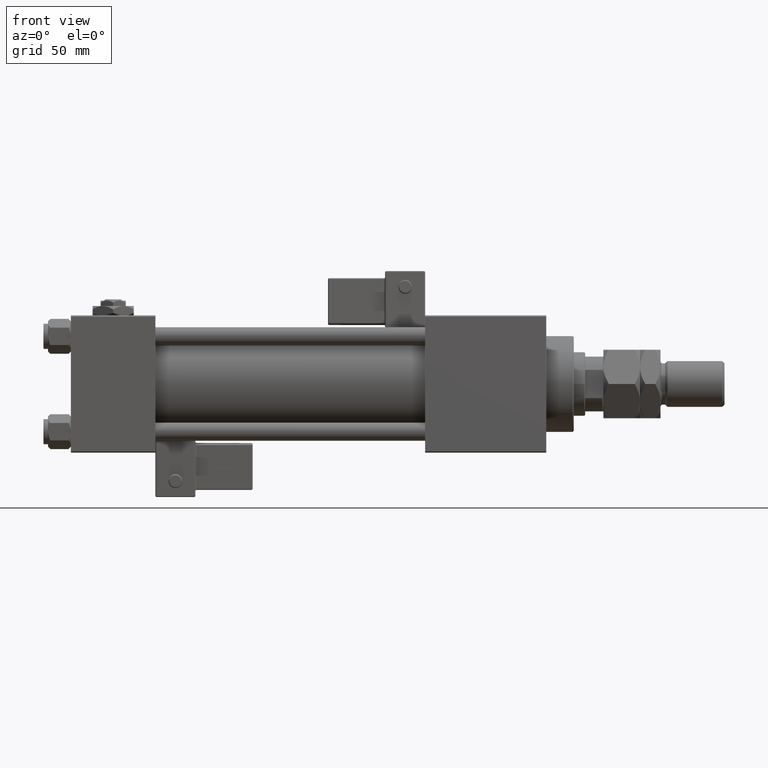
[diagram: clean part render]
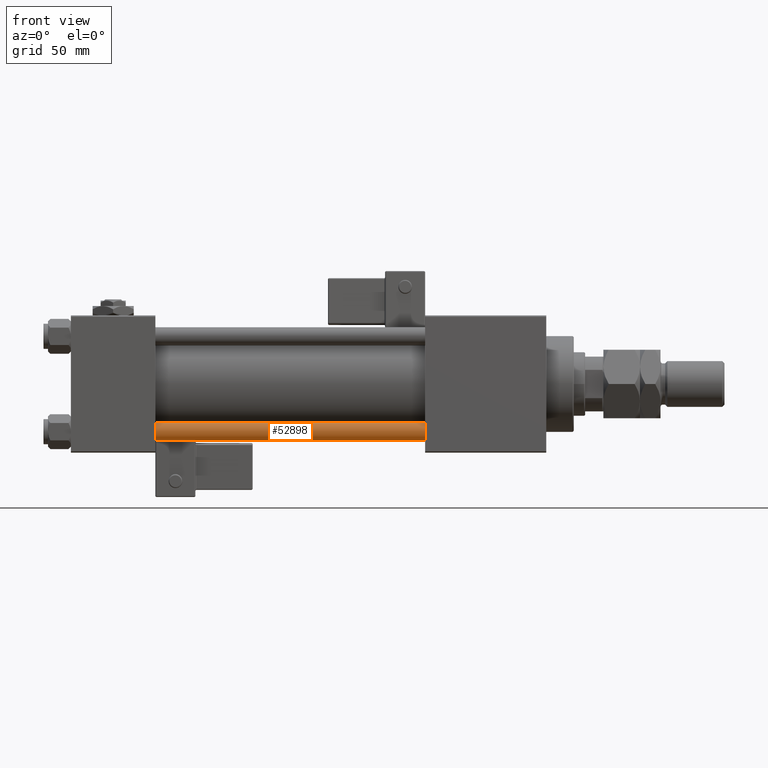
[diagram: same view with one face highlighted and labeled with its STEP entity id]
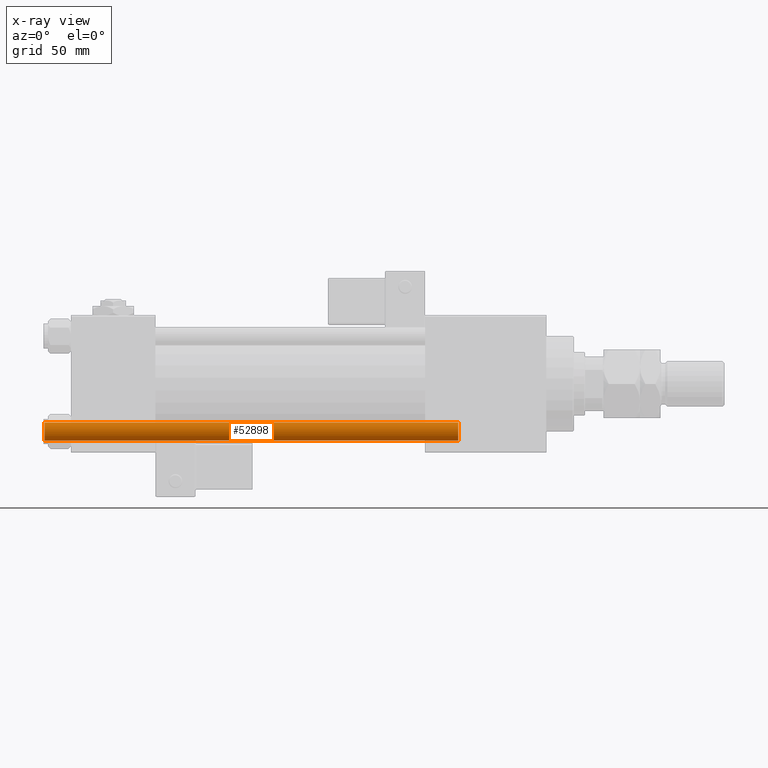
[diagram: x-ray of the same camera — body ghosted, the highlighted face saturated]
A machine part, front view. The second image highlights one B-rep face of the part: STEP entity #52898.
The next image is the same camera in x-ray: the body ghosted, the highlighted face saturated — about 0% of this face is hidden behind the body in this view.
In plain terms, the highlighted cylindrical surface (edge-blend (fillet) strip) has radius 4 mm, axis along (1, 0, -0).
Its self-contained STEP definition (entity closure, byte-faithful):
#2011 = VECTOR ( 'NONE', #28327, 1000.000000000000000 ) ;
#2036 = CIRCLE ( 'NONE', #22861, 4.000000000000000000 ) ;
#2525 = EDGE_CURVE ( 'NONE', #55029, #46060, #15858, .T. ) ;
#2544 = CARTESIAN_POINT ( 'NONE',  ( 0.000000000000000000, 0.000000000000000000, 181.5000000000000284 ) ) ;
#5445 = DIRECTION ( 'NONE',  ( -0.000000000000000000, -0.000000000000000000, -1.000000000000000000 ) ) ;
#5733 = VERTEX_POINT ( 'NONE', #50932 ) ;
#5843 = CARTESIAN_POINT ( 'NONE',  ( -4.000000000000000000, 0.000000000000000000, 181.5000000000000284 ) ) ;
#9203 = AXIS2_PLACEMENT_3D ( 'NONE', #9756, #13450, #52811 ) ;
#9756 = CARTESIAN_POINT ( 'NONE',  ( 0.000000000000000000, 0.000000000000000000, 182.0000000000000000 ) ) ;
#10316 = EDGE_CURVE ( 'NONE', #55029, #5733, #15739, .T. ) ;
#11052 = CARTESIAN_POINT ( 'NONE',  ( -4.000000000000000000, 0.000000000000000000, 182.0000000000000000 ) ) ;
#12546 = EDGE_LOOP ( 'NONE', ( #34924, #13687, #17719, #23029 ) ) ;
#13450 = DIRECTION ( 'NONE',  ( -0.000000000000000000, -0.000000000000000000, -1.000000000000000000 ) ) ;
#13687 = ORIENTED_EDGE ( 'NONE', *, *, #29690, .T. ) ;
#15476 = CARTESIAN_POINT ( 'NONE',  ( 4.000000000000000000, 4.898587196589412829E-16, 0.4999999999999726885 ) ) ;
#15739 = CIRCLE ( 'NONE', #23906, 4.000000000000000000 ) ;
#15858 = LINE ( 'NONE', #11052, #2011 ) ;
#17263 = DIRECTION ( 'NONE',  ( -0.000000000000000000, -0.000000000000000000, 1.000000000000000000 ) ) ;
#17719 = ORIENTED_EDGE ( 'NONE', *, *, #54694, .T. ) ;
#18971 = DIRECTION ( 'NONE',  ( 1.000000000000000000, 0.000000000000000000, 0.000000000000000000 ) ) ;
#19806 = DIRECTION ( 'NONE',  ( 0.000000000000000000, 0.000000000000000000, -1.000000000000000000 ) ) ;
#22861 = AXIS2_PLACEMENT_3D ( 'NONE', #39085, #17263, #26597 ) ;
#23029 = ORIENTED_EDGE ( 'NONE', *, *, #2525, .F. ) ;
#23906 = AXIS2_PLACEMENT_3D ( 'NONE', #2544, #19806, #18971 ) ;
#26597 = DIRECTION ( 'NONE',  ( 1.000000000000000000, 0.000000000000000000, 0.000000000000000000 ) ) ;
#27023 = CYLINDRICAL_SURFACE ( 'NONE', #9203, 4.000000000000000000 ) ;
#28327 = DIRECTION ( 'NONE',  ( -0.000000000000000000, -0.000000000000000000, -1.000000000000000000 ) ) ;
#29690 = EDGE_CURVE ( 'NONE', #5733, #40719, #44255, .T. ) ;
#30465 = FACE_OUTER_BOUND ( 'NONE', #12546, .T. ) ;
#34285 = CARTESIAN_POINT ( 'NONE',  ( -4.000000000000000000, 0.000000000000000000, 0.4999999999999726885 ) ) ;
#34924 = ORIENTED_EDGE ( 'NONE', *, *, #10316, .T. ) ;
#39085 = CARTESIAN_POINT ( 'NONE',  ( 0.000000000000000000, 0.000000000000000000, 0.4999999999999726885 ) ) ;
#40719 = VERTEX_POINT ( 'NONE', #15476 ) ;
#43987 = CARTESIAN_POINT ( 'NONE',  ( 4.000000000000000000, 4.898587196589412829E-16, 182.0000000000000000 ) ) ;
#44255 = LINE ( 'NONE', #43987, #50182 ) ;
#46060 = VERTEX_POINT ( 'NONE', #34285 ) ;
#50182 = VECTOR ( 'NONE', #5445, 1000.000000000000000 ) ;
#50932 = CARTESIAN_POINT ( 'NONE',  ( 4.000000000000000000, 4.898587196589412829E-16, 181.5000000000000284 ) ) ;
#52811 = DIRECTION ( 'NONE',  ( -1.000000000000000000, 0.000000000000000000, 0.000000000000000000 ) ) ;
#52898 = ADVANCED_FACE ( 'NONE', ( #30465 ), #27023, .T. ) ;
#54694 = EDGE_CURVE ( 'NONE', #40719, #46060, #2036, .T. ) ;
#55029 = VERTEX_POINT ( 'NONE', #5843 ) ;